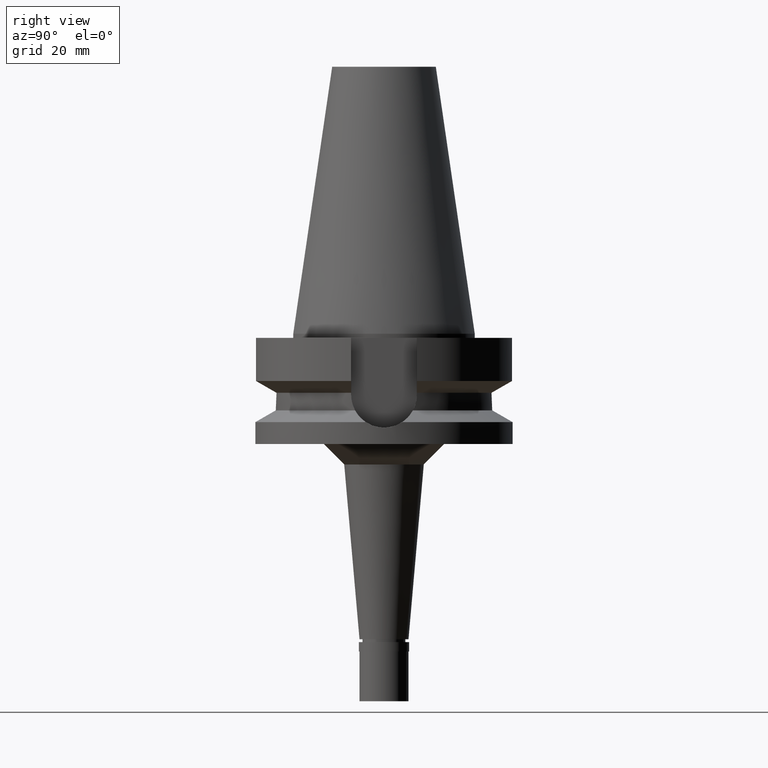
[diagram: clean part render]
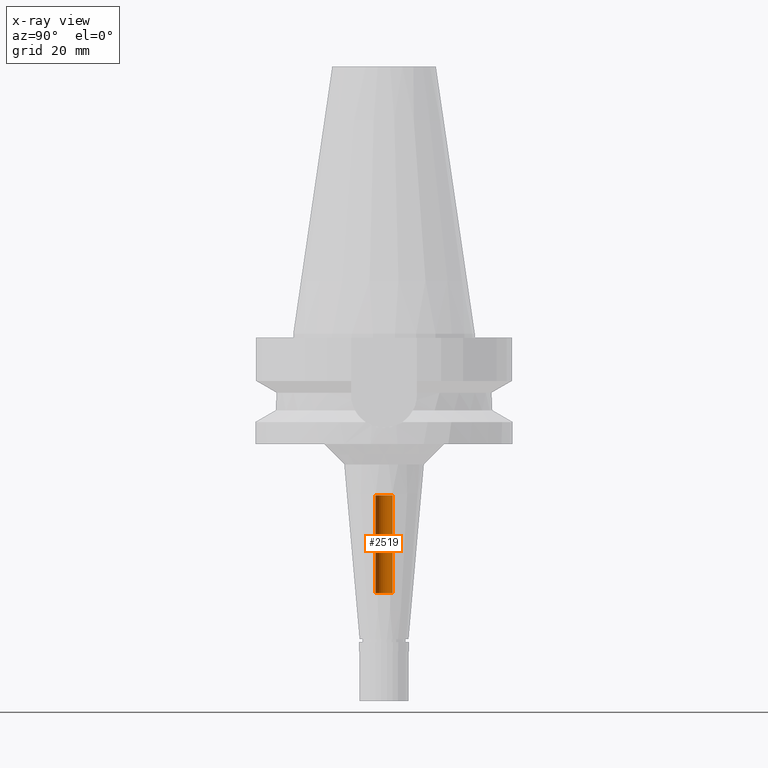
[diagram: x-ray — body ghosted, one internal face saturated and labeled with its STEP entity id]
A machine part, right view, then the same camera in x-ray: the body is ghosted and one INTERNAL B-rep face — a face not visible from any outside direction — is saturated and labeled: STEP entity #2519.
In plain terms, the highlighted cylindrical surface (edge-blend (fillet) strip) has radius 2.1 mm, axis along (0, 0, -1).
Its self-contained STEP definition (entity closure, byte-faithful):
#8 = CARTESIAN_POINT ( 'NONE',  ( 0.0000000000000000000, 2.100000000000000089, -63.50000000000000000 ) ) ;
#37 = DIRECTION ( 'NONE',  ( 0.0000000000000000000, -1.000000000000000000, 0.0000000000000000000 ) ) ;
#82 = CARTESIAN_POINT ( 'NONE',  ( 0.0000000000000000000, 2.100000000000000089, -39.60000000000000142 ) ) ;
#115 = DIRECTION ( 'NONE',  ( 0.0000000000000000000, 0.0000000000000000000, 1.000000000000000000 ) ) ;
#316 = ORIENTED_EDGE ( 'NONE', *, *, #1354, .T. ) ;
#320 = AXIS2_PLACEMENT_3D ( 'NONE', #1522, #115, #2208 ) ;
#408 = FACE_OUTER_BOUND ( 'NONE', #1045, .T. ) ;
#432 = AXIS2_PLACEMENT_3D ( 'NONE', #2861, #1037, #2427 ) ;
#526 = EDGE_CURVE ( 'NONE', #2731, #2838, #2886, .T. ) ;
#609 = AXIS2_PLACEMENT_3D ( 'NONE', #1385, #1858, #37 ) ;
#1037 = DIRECTION ( 'NONE',  ( 0.0000000000000000000, 0.0000000000000000000, -1.000000000000000000 ) ) ;
#1045 = EDGE_LOOP ( 'NONE', ( #2015, #1561, #316, #2750 ) ) ;
#1047 = EDGE_CURVE ( 'NONE', #2838, #1605, #2527, .T. ) ;
#1069 = DIRECTION ( 'NONE',  ( 0.0000000000000000000, 0.0000000000000000000, 1.000000000000000000 ) ) ;
#1283 = CYLINDRICAL_SURFACE ( 'NONE', #432, 2.100000000000000089 ) ;
#1354 = EDGE_CURVE ( 'NONE', #2032, #2731, #2917, .T. ) ;
#1365 = VECTOR ( 'NONE', #1505, 1000.000000000000000 ) ;
#1385 = CARTESIAN_POINT ( 'NONE',  ( 0.0000000000000000000, 2.118271568485000005E-14, -63.50000000000000000 ) ) ;
#1505 = DIRECTION ( 'NONE',  ( 0.0000000000000000000, 0.0000000000000000000, 1.000000000000000000 ) ) ;
#1506 = CARTESIAN_POINT ( 'NONE',  ( 0.0000000000000000000, -2.100000000000000089, -39.60000000000000142 ) ) ;
#1522 = CARTESIAN_POINT ( 'NONE',  ( 0.0000000000000000000, 2.118271568485000005E-14, -39.60000000000000142 ) ) ;
#1561 = ORIENTED_EDGE ( 'NONE', *, *, #2206, .F. ) ;
#1605 = VERTEX_POINT ( 'NONE', #1506 ) ;
#1760 = CARTESIAN_POINT ( 'NONE',  ( 0.0000000000000000000, 2.100000000000000089, -63.50000000000000000 ) ) ;
#1858 = DIRECTION ( 'NONE',  ( 0.0000000000000000000, 0.0000000000000000000, -1.000000000000000000 ) ) ;
#2015 = ORIENTED_EDGE ( 'NONE', *, *, #1047, .T. ) ;
#2032 = VERTEX_POINT ( 'NONE', #2390 ) ;
#2095 = VECTOR ( 'NONE', #1069, 1000.000000000000000 ) ;
#2206 = EDGE_CURVE ( 'NONE', #2032, #1605, #2450, .T. ) ;
#2208 = DIRECTION ( 'NONE',  ( 0.0000000000000000000, 1.000000000000000000, 0.0000000000000000000 ) ) ;
#2263 = CARTESIAN_POINT ( 'NONE',  ( 0.0000000000000000000, -2.100000000000000089, -63.50000000000000000 ) ) ;
#2390 = CARTESIAN_POINT ( 'NONE',  ( 0.0000000000000000000, -2.100000000000000089, -63.50000000000000000 ) ) ;
#2427 = DIRECTION ( 'NONE',  ( 0.0000000000000000000, -1.000000000000000000, 0.0000000000000000000 ) ) ;
#2450 = LINE ( 'NONE', #2263, #2095 ) ;
#2519 = ADVANCED_FACE ( 'NONE', ( #408 ), #1283, .F. ) ;
#2527 = CIRCLE ( 'NONE', #320, 2.100000000000000089 ) ;
#2731 = VERTEX_POINT ( 'NONE', #8 ) ;
#2750 = ORIENTED_EDGE ( 'NONE', *, *, #526, .T. ) ;
#2838 = VERTEX_POINT ( 'NONE', #82 ) ;
#2861 = CARTESIAN_POINT ( 'NONE',  ( 0.0000000000000000000, 2.118271568485000005E-14, 72.96999999999999886 ) ) ;
#2886 = LINE ( 'NONE', #1760, #1365 ) ;
#2917 = CIRCLE ( 'NONE', #609, 2.100000000000000089 ) ;